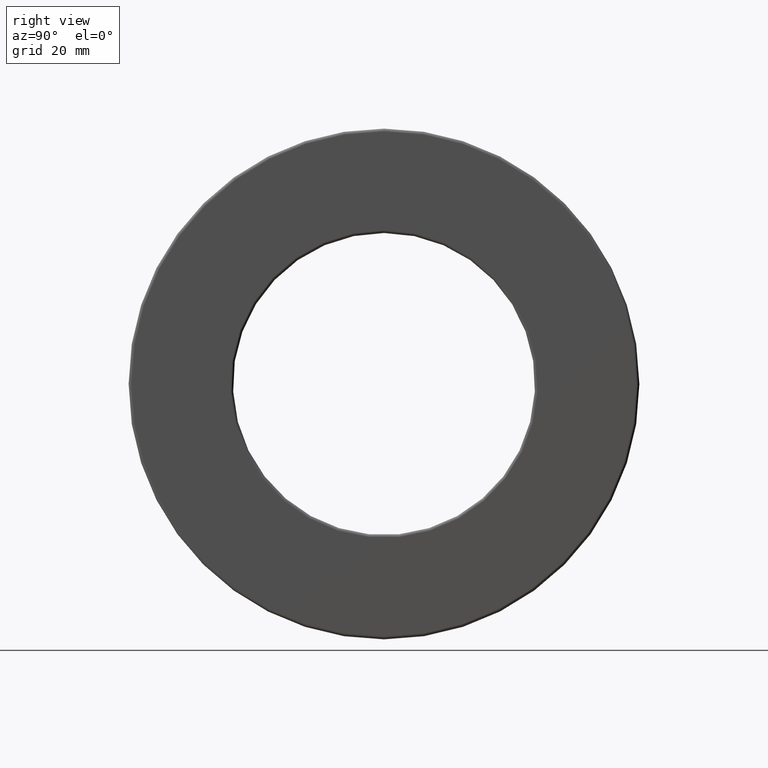
[diagram: clean part render]
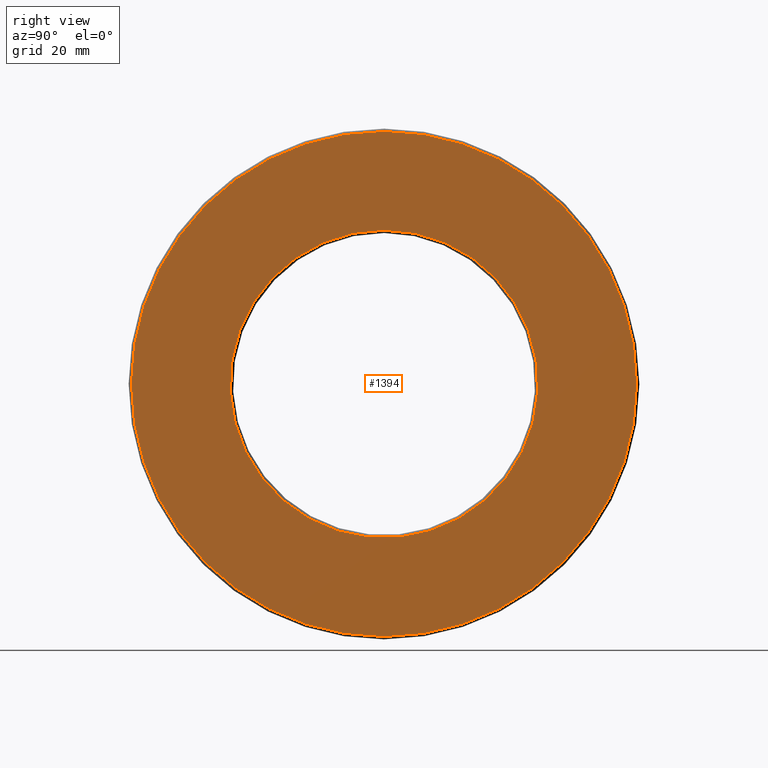
[diagram: same view with one face highlighted and labeled with its STEP entity id]
A machine part, right view. The second image highlights one B-rep face of the part: STEP entity #1394.
In plain terms, the highlighted planar face has unit normal (1, 0, 0).
Its self-contained STEP definition (entity closure, byte-faithful):
#64 = CIRCLE ( 'NONE', #992, 1.776875000000000400 ) ;
#115 = ORIENTED_EDGE ( 'NONE', *, *, #1251, .T. ) ;
#157 = CARTESIAN_POINT ( 'NONE',  ( 0.4060000000000001400, 0.0000000000000000000, 0.0000000000000000000 ) ) ;
#172 = VERTEX_POINT ( 'NONE', #971 ) ;
#173 = AXIS2_PLACEMENT_3D ( 'NONE', #794, #1124, #1137 ) ;
#284 = CARTESIAN_POINT ( 'NONE',  ( 0.4060000000000001400, 0.0000000000000000000, 1.776875000000000400 ) ) ;
#396 = EDGE_LOOP ( 'NONE', ( #1235 ) ) ;
#572 = VERTEX_POINT ( 'NONE', #284 ) ;
#595 = DIRECTION ( 'NONE',  ( -1.000000000000000000, -0.0000000000000000000, -0.0000000000000000000 ) ) ;
#683 = EDGE_CURVE ( 'NONE', #572, #572, #64, .T. ) ;
#794 = CARTESIAN_POINT ( 'NONE',  ( 0.4060000000000001400, 0.0000000000000000000, 0.0000000000000000000 ) ) ;
#876 = EDGE_LOOP ( 'NONE', ( #115 ) ) ;
#925 = FACE_BOUND ( 'NONE', #876, .T. ) ;
#964 = DIRECTION ( 'NONE',  ( 1.000000000000000000, 0.0000000000000000000, 0.0000000000000000000 ) ) ;
#971 = CARTESIAN_POINT ( 'NONE',  ( 0.4060000000000001400, 0.0000000000000000000, 1.082500000000000000 ) ) ;
#992 = AXIS2_PLACEMENT_3D ( 'NONE', #1151, #595, #1165 ) ;
#1117 = CIRCLE ( 'NONE', #173, 1.082500000000000000 ) ;
#1124 = DIRECTION ( 'NONE',  ( -1.000000000000000000, -0.0000000000000000000, -0.0000000000000000000 ) ) ;
#1137 = DIRECTION ( 'NONE',  ( 0.0000000000000000000, 0.0000000000000000000, 1.000000000000000000 ) ) ;
#1151 = CARTESIAN_POINT ( 'NONE',  ( 0.4060000000000001400, 0.0000000000000000000, 0.0000000000000000000 ) ) ;
#1165 = DIRECTION ( 'NONE',  ( 0.0000000000000000000, 0.0000000000000000000, 1.000000000000000000 ) ) ;
#1174 = PLANE ( 'NONE',  #1200 ) ;
#1200 = AXIS2_PLACEMENT_3D ( 'NONE', #157, #964, #1294 ) ;
#1235 = ORIENTED_EDGE ( 'NONE', *, *, #683, .F. ) ;
#1251 = EDGE_CURVE ( 'NONE', #172, #172, #1117, .T. ) ;
#1294 = DIRECTION ( 'NONE',  ( 0.0000000000000000000, 0.0000000000000000000, -1.000000000000000000 ) ) ;
#1341 = FACE_OUTER_BOUND ( 'NONE', #396, .T. ) ;
#1394 = ADVANCED_FACE ( 'NONE', ( #925, #1341 ), #1174, .T. ) ;